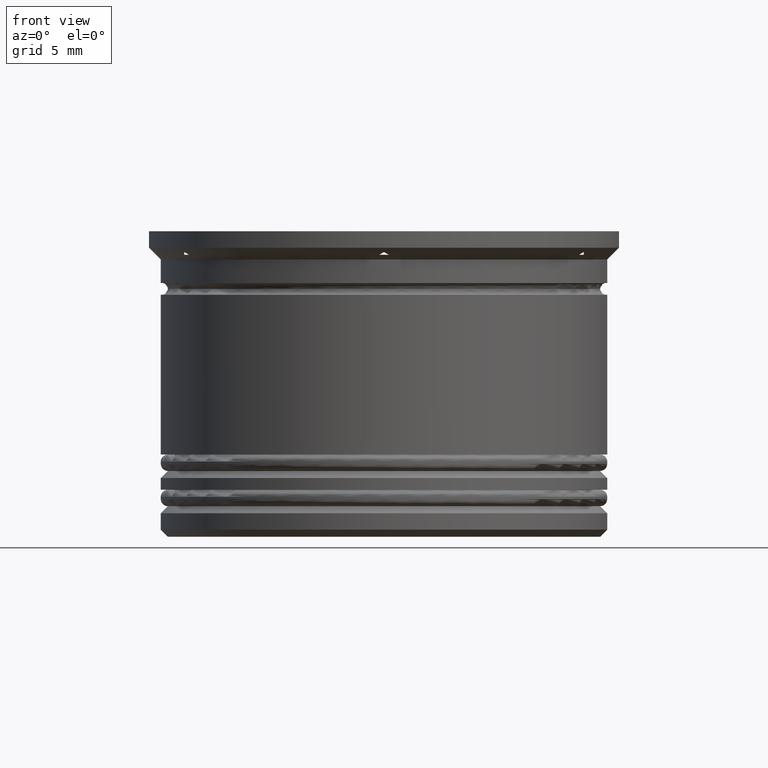
[diagram: clean part render]
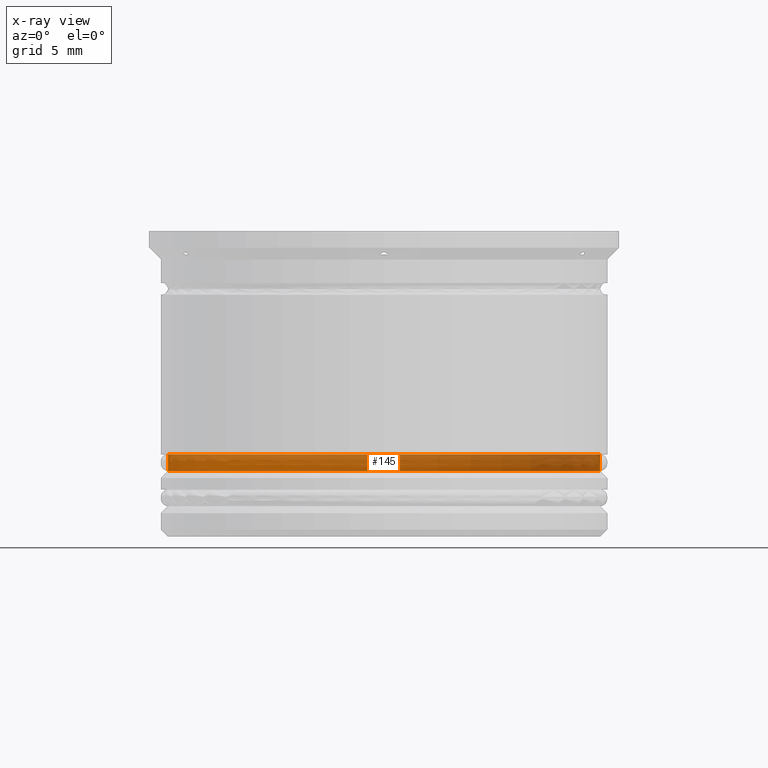
[diagram: x-ray — body ghosted, one internal face saturated and labeled with its STEP entity id]
A machine part, front view, then the same camera in x-ray: the body is ghosted and one INTERNAL B-rep face — a face not visible from any outside direction — is saturated and labeled: STEP entity #145.
In plain terms, the highlighted cylindrical surface (partial cylindrical patch) has radius 9.2 mm, axis along (-0, -0, 1).
Its self-contained STEP definition (entity closure, byte-faithful):
#14 = CYLINDRICAL_SURFACE ( 'NONE', #1315, 9.199999999999999289 ) ;
#54 = VECTOR ( 'NONE', #858, 1000.000000000000000 ) ;
#104 = CARTESIAN_POINT ( 'NONE',  ( 0.000000000000000000, 0.000000000000000000, -9.500000000000000000 ) ) ;
#145 = ADVANCED_FACE ( 'NONE', ( #2165 ), #14, .T. ) ;
#153 = AXIS2_PLACEMENT_3D ( 'NONE', #342, #1185, #1020 ) ;
#154 = VERTEX_POINT ( 'NONE', #2017 ) ;
#316 = CIRCLE ( 'NONE', #1203, 9.199999999999999289 ) ;
#342 = CARTESIAN_POINT ( 'NONE',  ( 0.000000000000000000, 0.000000000000000000, -10.20000000000000639 ) ) ;
#388 = ORIENTED_EDGE ( 'NONE', *, *, #1253, .F. ) ;
#554 = EDGE_CURVE ( 'NONE', #649, #932, #1329, .T. ) ;
#616 = ORIENTED_EDGE ( 'NONE', *, *, #1707, .T. ) ;
#649 = VERTEX_POINT ( 'NONE', #2068 ) ;
#760 = VERTEX_POINT ( 'NONE', #1069 ) ;
#858 = DIRECTION ( 'NONE',  ( -0.000000000000000000, -0.000000000000000000, 1.000000000000000000 ) ) ;
#911 = EDGE_CURVE ( 'NONE', #154, #760, #1823, .T. ) ;
#932 = VERTEX_POINT ( 'NONE', #2003 ) ;
#934 = VECTOR ( 'NONE', #1193, 1000.000000000000000 ) ;
#991 = CARTESIAN_POINT ( 'NONE',  ( 9.199999999999999289, 0.000000000000000000, 0.000000000000000000 ) ) ;
#1020 = DIRECTION ( 'NONE',  ( -1.000000000000000000, 0.000000000000000000, 0.000000000000000000 ) ) ;
#1069 = CARTESIAN_POINT ( 'NONE',  ( 9.199999999999999289, 0.000000000000000000, -9.500000000000000000 ) ) ;
#1077 = ORIENTED_EDGE ( 'NONE', *, *, #554, .T. ) ;
#1184 = CARTESIAN_POINT ( 'NONE',  ( 0.000000000000000000, 0.000000000000000000, 0.000000000000000000 ) ) ;
#1185 = DIRECTION ( 'NONE',  ( -0.000000000000000000, -0.000000000000000000, 1.000000000000000000 ) ) ;
#1193 = DIRECTION ( 'NONE',  ( -0.000000000000000000, -0.000000000000000000, 1.000000000000000000 ) ) ;
#1203 = AXIS2_PLACEMENT_3D ( 'NONE', #104, #1779, #1415 ) ;
#1253 = EDGE_CURVE ( 'NONE', #760, #932, #316, .T. ) ;
#1315 = AXIS2_PLACEMENT_3D ( 'NONE', #1184, #1362, #1370 ) ;
#1329 = LINE ( 'NONE', #1660, #934 ) ;
#1362 = DIRECTION ( 'NONE',  ( -0.000000000000000000, -0.000000000000000000, 1.000000000000000000 ) ) ;
#1370 = DIRECTION ( 'NONE',  ( 1.000000000000000000, 0.000000000000000000, 0.000000000000000000 ) ) ;
#1415 = DIRECTION ( 'NONE',  ( 1.000000000000000000, 0.000000000000000000, 0.000000000000000000 ) ) ;
#1459 = CIRCLE ( 'NONE', #153, 9.199999999999999289 ) ;
#1577 = ORIENTED_EDGE ( 'NONE', *, *, #911, .F. ) ;
#1660 = CARTESIAN_POINT ( 'NONE',  ( -9.199999999999999289, 1.126675055215564822E-15, 0.000000000000000000 ) ) ;
#1707 = EDGE_CURVE ( 'NONE', #154, #649, #1459, .T. ) ;
#1753 = EDGE_LOOP ( 'NONE', ( #616, #1077, #388, #1577 ) ) ;
#1779 = DIRECTION ( 'NONE',  ( -0.000000000000000000, -0.000000000000000000, 1.000000000000000000 ) ) ;
#1823 = LINE ( 'NONE', #991, #54 ) ;
#2003 = CARTESIAN_POINT ( 'NONE',  ( -9.199999999999999289, 1.126675055215564822E-15, -9.500000000000000000 ) ) ;
#2017 = CARTESIAN_POINT ( 'NONE',  ( 9.199999999999999289, 0.000000000000000000, -10.20000000000000639 ) ) ;
#2068 = CARTESIAN_POINT ( 'NONE',  ( -9.199999999999999289, 1.126675055215564822E-15, -10.20000000000000639 ) ) ;
#2165 = FACE_OUTER_BOUND ( 'NONE', #1753, .T. ) ;